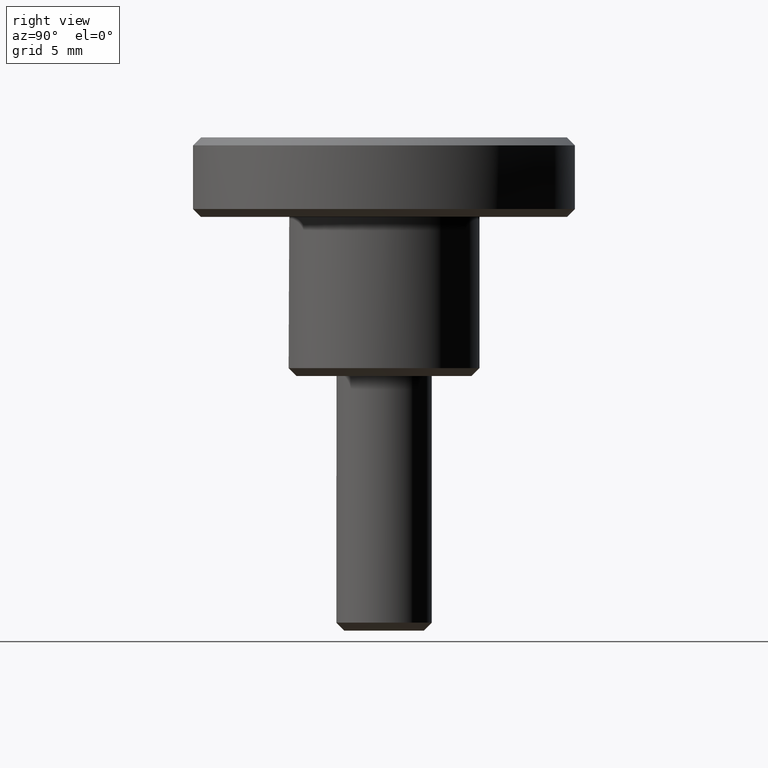
[diagram: clean part render]
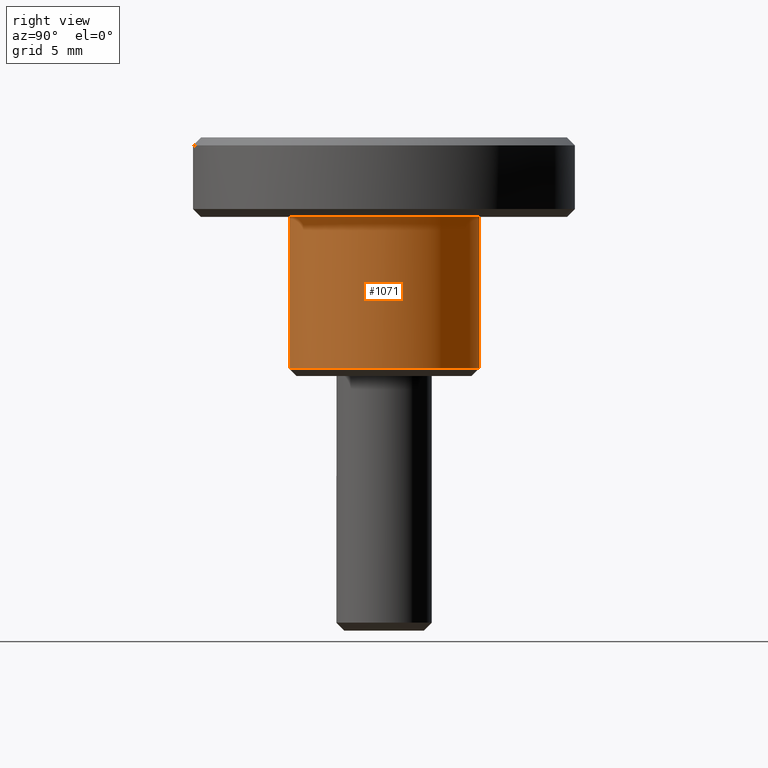
[diagram: same view with one face highlighted and labeled with its STEP entity id]
A machine part, right view. The second image highlights one B-rep face of the part: STEP entity #1071.
In plain terms, the highlighted face is a freeform B-spline surface patch.
Its self-contained STEP definition (entity closure, byte-faithful):
#701=CARTESIAN_POINT('',(0.744766787611159,-5.953597436178384,0.499999999999956));
#702=VERTEX_POINT('',#701);
#759=CARTESIAN_POINT('',(-0.052357741389686,5.999771551226409,0.499999999999591));
#760=VERTEX_POINT('',#759);
#766=CARTESIAN_POINT('',(6.0,0.0,0.499999999999945));
#767=VERTEX_POINT('',#766);
#768=CARTESIAN_POINT('',(6.0,0.0,0.499999999999945));
#769=CARTESIAN_POINT('',(6.0,6.0,0.499999999999945));
#770=CARTESIAN_POINT('',(0.0,6.0,0.499999999999945));
#771=CARTESIAN_POINT('',(-0.026179369081909,6.0,0.499999999999945));
#772=CARTESIAN_POINT('',(-0.052357741389686,5.999771551226409,0.499999999999591));
#780=(BOUNDED_CURVE()B_SPLINE_CURVE(2,(#768,#769,#770,#771,#772),.UNSPECIFIED.,.F.,.U.)B_SPLINE_CURVE_WITH_KNOTS((3,2,3),(0.500000000000000,0.750000000000000,0.751539851131372),.UNSPECIFIED.)CURVE()GEOMETRIC_REPRESENTATION_ITEM()RATIONAL_B_SPLINE_CURVE((1.0,0.707106781186548,1.0,0.998195952182556,0.996414128085694))REPRESENTATION_ITEM(''));
#781=EDGE_CURVE('',#767,#760,#780,.T.);
#783=CARTESIAN_POINT('',(0.744766787611159,-5.953597436178384,0.499999999999956));
#784=CARTESIAN_POINT('',(6.0,-5.296192699009946,0.499999999999945));
#785=CARTESIAN_POINT('',(6.0,0.0,0.499999999999945));
#793=(BOUNDED_CURVE()B_SPLINE_CURVE(2,(#783,#784,#785),.UNSPECIFIED.,.F.,.U.)B_SPLINE_CURVE_WITH_KNOTS((3,3),(0.271473894274204,0.500000000000000),.UNSPECIFIED.)CURVE()GEOMETRIC_REPRESENTATION_ITEM()RATIONAL_B_SPLINE_CURVE((0.954005497607217,0.732265013244273,1.0))REPRESENTATION_ITEM(''));
#794=EDGE_CURVE('',#702,#767,#793,.T.);
#1005=CARTESIAN_POINT('',(0.744768012478976,-5.953597282953231,0.262499999999943));
#1006=CARTESIAN_POINT('',(6.046396983014668,-5.290387548799326,0.262499999999943));
#1007=CARTESIAN_POINT('',(5.999771538385026,0.052359212990243,0.262499999999943));
#1008=CARTESIAN_POINT('',(5.947412325394783,6.052130751375269,0.262499999999943));
#1009=CARTESIAN_POINT('',(-0.052359212990243,5.999771538385026,0.262499999999943));
#1010=CARTESIAN_POINT('',(0.744768012478976,-5.953597282953231,10.243437500000006));
#1011=CARTESIAN_POINT('',(6.046396983014668,-5.290387548799326,10.243437500000004));
#1012=CARTESIAN_POINT('',(5.999771538385026,0.052359212990243,10.243437500000001));
#1013=CARTESIAN_POINT('',(5.947412325394783,6.052130751375269,10.243437500000004));
#1014=CARTESIAN_POINT('',(-0.052359212990243,5.999771538385026,10.243437500000001));
#1022=(BOUNDED_SURFACE()B_SPLINE_SURFACE(2,1,((#1005,#1010),(#1006,#1011),(#1007,#1012),(#1008,#1013),(#1009,#1014)),.UNSPECIFIED.,.F.,.F.,.U.)B_SPLINE_SURFACE_WITH_KNOTS((3,2,3),(2,2),(0.0,9.145835457197935,19.086960954152211),(0.0,9.980937500000064),.UNSPECIFIED.)GEOMETRIC_REPRESENTATION_ITEM()RATIONAL_B_SPLINE_SURFACE(((0.956886118190660,0.956886118190660),(0.730538238691624,0.730538238691624),(1.0,1.0),(0.707106781186548,0.707106781186548),(1.0,1.0)))REPRESENTATION_ITEM('')SURFACE());
#1023=ORIENTED_EDGE('',*,*,#794,.T.);
#1024=ORIENTED_EDGE('',*,*,#781,.T.);
#1025=CARTESIAN_POINT('',(-0.052355687551986,5.999771569148988,10.0));
#1026=VERTEX_POINT('',#1025);
#1027=CARTESIAN_POINT('',(-0.052357741389686,5.999771551226409,0.499999999999591));
#1028=CARTESIAN_POINT('',(-0.052355687551986,5.999771569148988,10.0));
#1029=QUASI_UNIFORM_CURVE('',1,(#1027,#1028),.UNSPECIFIED.,.F.,.U.);
#1030=EDGE_CURVE('',#760,#1026,#1029,.T.);
#1031=ORIENTED_EDGE('',*,*,#1030,.T.);
#1032=CARTESIAN_POINT('',(6.0,0.0,10.0));
#1033=VERTEX_POINT('',#1032);
#1034=CARTESIAN_POINT('',(-0.052355687551986,5.999771569148988,9.999999999999998));
#1035=CARTESIAN_POINT('',(-0.026178342104409,6.000000000000001,10.0));
#1036=CARTESIAN_POINT('',(0.0,6.0,10.0));
#1037=CARTESIAN_POINT('',(6.0,6.0,10.000000000000002));
#1038=CARTESIAN_POINT('',(6.0,0.0,10.0));
#1046=(BOUNDED_CURVE()B_SPLINE_CURVE(2,(#1034,#1035,#1036,#1037,#1038),.UNSPECIFIED.,.F.,.U.)B_SPLINE_CURVE_WITH_KNOTS((3,2,3),(0.248460209165715,0.250000000000000,0.500000000000000),.UNSPECIFIED.)CURVE()GEOMETRIC_REPRESENTATION_ITEM()RATIONAL_B_SPLINE_CURVE((0.996414267630128,0.998196022824987,1.0,0.707106781186548,1.0))REPRESENTATION_ITEM(''));
#1047=EDGE_CURVE('',#1026,#1033,#1046,.T.);
#1048=ORIENTED_EDGE('',*,*,#1047,.T.);
#1049=CARTESIAN_POINT('',(0.744759922427401,-5.953598294970821,10.0));
#1050=VERTEX_POINT('',#1049);
#1051=CARTESIAN_POINT('',(6.0,0.0,10.0));
#1052=CARTESIAN_POINT('',(6.000000000000001,-5.296198853731516,10.0));
#1053=CARTESIAN_POINT('',(0.744759922427401,-5.953598294970821,10.000000000000002));
#1061=(BOUNDED_CURVE()B_SPLINE_CURVE(2,(#1051,#1052,#1053),.UNSPECIFIED.,.F.,.U.)B_SPLINE_CURVE_WITH_KNOTS((3,3),(0.500000000000000,0.728526300193999),.UNSPECIFIED.)CURVE()GEOMETRIC_REPRESENTATION_ITEM()RATIONAL_B_SPLINE_CURVE((1.0,0.732264785410601,0.954005874995296))REPRESENTATION_ITEM(''));
#1062=EDGE_CURVE('',#1033,#1050,#1061,.T.);
#1063=ORIENTED_EDGE('',*,*,#1062,.T.);
#1064=CARTESIAN_POINT('',(0.744766787611159,-5.953597436178384,0.499999999999956));
#1065=CARTESIAN_POINT('',(0.744759922427401,-5.953598294970821,10.0));
#1066=QUASI_UNIFORM_CURVE('',1,(#1064,#1065),.UNSPECIFIED.,.F.,.U.);
#1067=EDGE_CURVE('',#702,#1050,#1066,.T.);
#1068=ORIENTED_EDGE('',*,*,#1067,.F.);
#1069=EDGE_LOOP('',(#1023,#1024,#1031,#1048,#1063,#1068));
#1070=FACE_OUTER_BOUND('',#1069,.T.);
#1071=ADVANCED_FACE('',(#1070),#1022,.T.);